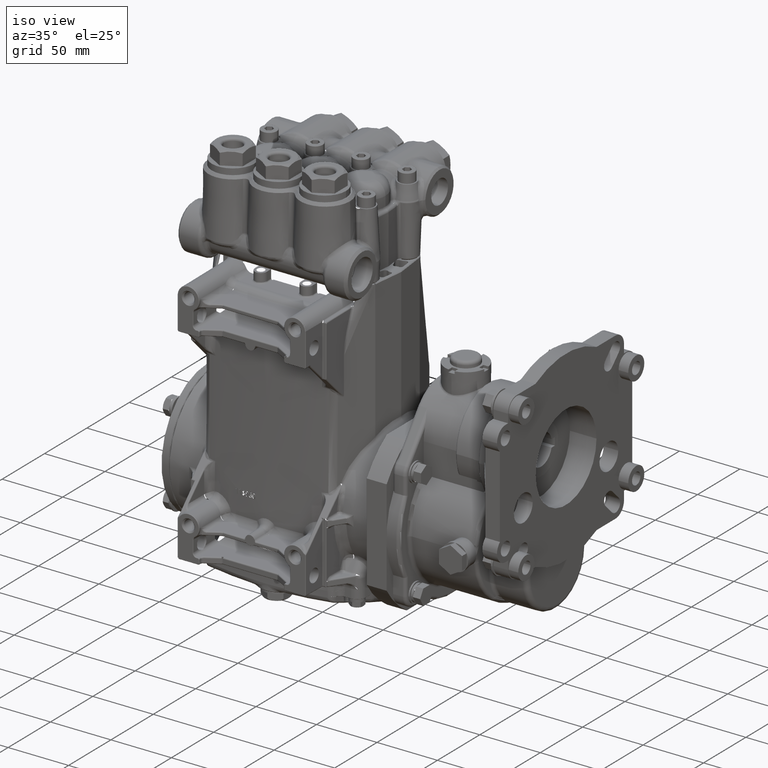
[diagram: clean part render]
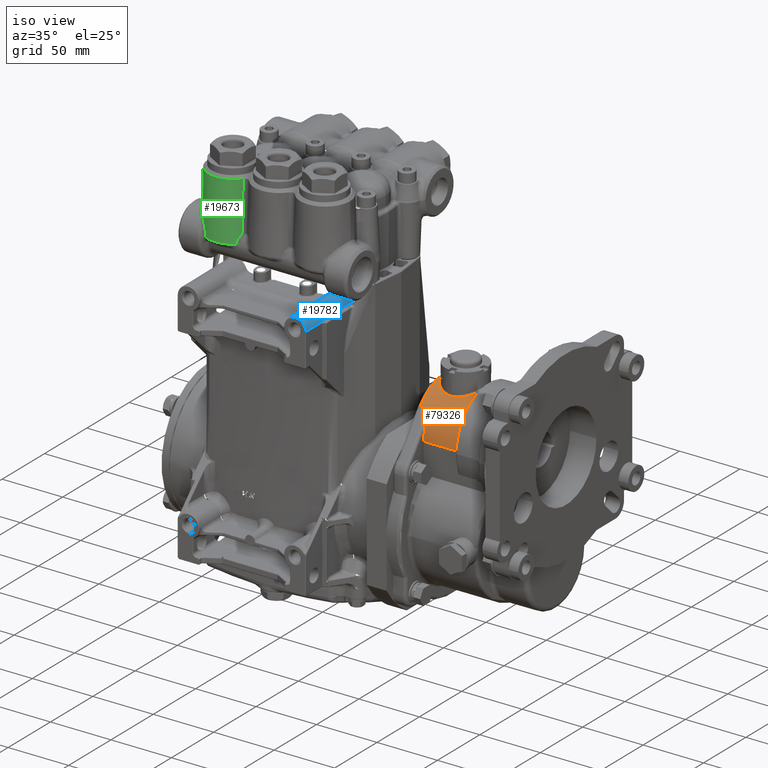
[diagram: same view with three faces highlighted in distinct colors, each labeled with its STEP entity id]
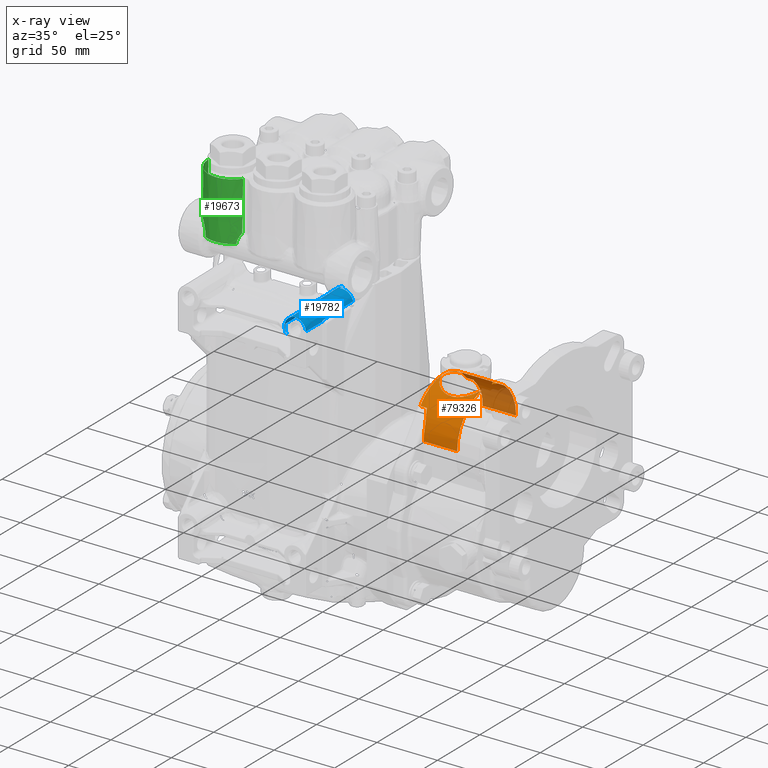
[diagram: x-ray of the same camera — body ghosted, the three highlighted faces saturated]
A machine part, iso view with three faces highlighted in distinct colors.
The next image is the same camera in x-ray (body ghosted, the three faces saturated) — at least one of them is partly hidden behind the body in this view.
Their STEP definitions:

[orange] entity #79326 — the highlighted cylindrical surface (partial cylindrical patch) has radius 34.798 mm, axis along (1, 0, -0).
#1162 = DIRECTION ( 'NONE',  ( -1.000000000000000000, -5.241929486955537873E-17, 1.684286493261702228E-17 ) ) ;
#1629 = CARTESIAN_POINT ( 'NONE',  ( 10.12568773263296329, -0.1997977558323488778, 0.5833511465538874230 ) ) ;
#1750 = CARTESIAN_POINT ( 'NONE',  ( 9.815214099091482680, 1.805292903487342171, -0.2256854626823476262 ) ) ;
#3557 = CARTESIAN_POINT ( 'NONE',  ( 9.715214099091483035, -0.5924274206687478728, 0.2409702225051837676 ) ) ;
#3728 = CARTESIAN_POINT ( 'NONE',  ( 9.517317591900138041, 0.3797155899063233697, 0.7649675640734562299 ) ) ;
#3802 = VERTEX_POINT ( 'NONE', #14081 ) ;
#5866 = CARTESIAN_POINT ( 'NONE',  ( 9.699822193214510335, 0.9581655266043314079, 0.6853066949075335978 ) ) ;
#6376 = DIRECTION ( 'NONE',  ( -1.000000000000000000, -5.241929486955537873E-17, 1.684286493261702228E-17 ) ) ;
#6572 = CARTESIAN_POINT ( 'NONE',  ( 9.580465297804135361, 0.7906131917402526854, 0.7351949854828665476 ) ) ;
#7693 = CARTESIAN_POINT ( 'NONE',  ( 10.73653551970091158, 0.9820915034158766987, 0.6762639759046317200 ) ) ;
#8336 = ORIENTED_EDGE ( 'NONE', *, *, #92593, .T. ) ;
#9013 = CARTESIAN_POINT ( 'NONE',  ( 10.60980304293593335, -0.1032917650848276386, 0.6344531000812795307 ) ) ;
#9124 = CARTESIAN_POINT ( 'NONE',  ( 9.815214099091482680, 1.568159035214265584, 0.2409702225051871816 ) ) ;
#9384 = ORIENTED_EDGE ( 'NONE', *, *, #65945, .T. ) ;
#10482 = AXIS2_PLACEMENT_3D ( 'NONE', #113259, #83494, #104053 ) ;
#11034 = VECTOR ( 'NONE', #111834, 39.37007874015748143 ) ;
#11083 = AXIS2_PLACEMENT_3D ( 'NONE', #37412, #26800, #133800 ) ;
#11101 = CARTESIAN_POINT ( 'NONE',  ( 10.71648082100846189, -0.02546606596043344065, 0.6688701504354975791 ) ) ;
#11611 = CARTESIAN_POINT ( 'NONE',  ( 9.642289238234059923, 0.08436820576953175943, 0.7081832330037501899 ) ) ;
#11968 = CARTESIAN_POINT ( 'NONE',  ( 9.500214099091483178, 1.568159035214265362, 0.2409702225051871816 ) ) ;
#12296 = CARTESIAN_POINT ( 'NONE',  ( 10.05634877622503431, -0.1866084668120253365, 0.5909169642455150973 ) ) ;
#12408 = CARTESIAN_POINT ( 'NONE',  ( 9.771461435974451604, 1.687863099329480310, 0.06086978425139212556 ) ) ;
#12978 = CARTESIAN_POINT ( 'NONE',  ( 10.17244876971810896, -0.2049148805976234444, 0.5803666275622345605 ) ) ;
#14081 = CARTESIAN_POINT ( 'NONE',  ( 10.16788845092270499, 1.179906225319097501, 0.5807965098389277214 ) ) ;
#15000 = ORIENTED_EDGE ( 'NONE', *, *, #125399, .T. ) ;
#15703 = EDGE_CURVE ( 'NONE', #33579, #27379, #41706, .T. ) ;
#17194 = CARTESIAN_POINT ( 'NONE',  ( 9.628230703756708309, 0.8696175434460957643, 0.7143142056688688291 ) ) ;
#17363 = EDGE_CURVE ( 'NONE', #117284, #71400, #136934, .T. ) ;
#17618 = CARTESIAN_POINT ( 'NONE',  ( 10.32580275398457914, 1.176625282729999888, 0.5827159114312081556 ) ) ;
#17910 = CARTESIAN_POINT ( 'NONE',  ( 9.821439673444434248, 1.061451042129850864, 0.6429461305608630273 ) ) ;
#18309 = VERTEX_POINT ( 'NONE', #122451 ) ;
#19455 = VERTEX_POINT ( 'NONE', #67821 ) ;
#19698 = CARTESIAN_POINT ( 'NONE',  ( 10.38370238331493667, 1.166805284480048721, 0.5883788976760764289 ) ) ;
#20338 = CARTESIAN_POINT ( 'NONE',  ( 10.42560460112481024, -0.1838787827247781725, 0.5927389032033522076 ) ) ;
#21284 = CARTESIAN_POINT ( 'NONE',  ( 10.90521409909148254, 0.7295930417575935412, 0.7469402609479987021 ) ) ;
#21723 = CARTESIAN_POINT ( 'NONE',  ( 10.82699759239447168, 0.09787620977176737791, 0.7120408919120952973 ) ) ;
#22232 = CARTESIAN_POINT ( 'NONE',  ( 9.843503703976669073, -0.09850546210836783056, 0.6366828931898548261 ) ) ;
#22749 = CARTESIAN_POINT ( 'NONE',  ( 16.01247551469438690, 1.857865807272759850, -0.6015655581378177574 ) ) ;
#23053 = CARTESIAN_POINT ( 'NONE',  ( 9.798785763004916660, 1.745980975947332148, -0.05749223075876980921 ) ) ;
#23942 = LINE ( 'NONE', #123158, #11034 ) ;
#24102 = CARTESIAN_POINT ( 'NONE',  ( 9.500214099091483178, -0.5924274206687480948, 0.2409702225051837676 ) ) ;
#24312 = CARTESIAN_POINT ( 'NONE',  ( 10.26725764456365475, -0.2062417239190386387, 0.5795863252395122567 ) ) ;
#26427 = CARTESIAN_POINT ( 'NONE',  ( 9.860090392756333699, 1.085356248271155399, 0.6314887414283394396 ) ) ;
#26671 = DIRECTION ( 'NONE',  ( -1.000000000000000000, -5.241929486955537873E-17, 1.684286493261702228E-17 ) ) ;
#26800 = DIRECTION ( 'NONE',  ( 1.000000000000000000, 5.241929486955537873E-17, -1.684286493261702228E-17 ) ) ;
#26896 = CARTESIAN_POINT ( 'NONE',  ( 9.815214099091482680, -0.8821341927272394745, -0.6015655581378219763 ) ) ;
#27379 = VERTEX_POINT ( 'NONE', #11968 ) ;
#27843 = CARTESIAN_POINT ( 'NONE',  ( 10.12119204410725359, 1.175991662621491907, 0.5830877162968234328 ) ) ;
#28077 = CARTESIAN_POINT ( 'NONE',  ( 9.815214099091482680, 0.4878658072727601325, -0.6015655581378198669 ) ) ;
#28352 = DIRECTION ( 'NONE',  ( 0.000000000000000000, 1.000000000000000000, 1.645090945089792983E-15 ) ) ;
#28953 = CARTESIAN_POINT ( 'NONE',  ( 10.36457541866918852, 1.170574133764033409, 0.5862145373075416943 ) ) ;
#32357 = CARTESIAN_POINT ( 'NONE',  ( 10.89917031643864753, 0.2304294666966074101, 0.7441243155379377860 ) ) ;
#33046 = CIRCLE ( 'NONE', #10482, 1.370000000000000329 ) ;
#33555 = CARTESIAN_POINT ( 'NONE',  ( 9.924473540553524487, -0.1426421260926224732, 0.6149628373922613189 ) ) ;
#33579 = VERTEX_POINT ( 'NONE', #113962 ) ;
#33783 = CARTESIAN_POINT ( 'NONE',  ( 16.01247551469438690, -0.8821341927272392525, -0.6015655581378221983 ) ) ;
#35624 = CARTESIAN_POINT ( 'NONE',  ( 9.583326788327617862, 0.1820224955130049782, 0.7340194916806458414 ) ) ;
#36353 = ORIENTED_EDGE ( 'NONE', *, *, #80385, .T. ) ;
#37060 = CARTESIAN_POINT ( 'NONE',  ( 9.655257614640081698, 0.9066053460644390993, 0.7030152709102829300 ) ) ;
#37412 = CARTESIAN_POINT ( 'NONE',  ( 9.500214099091483178, 0.4878658072727601325, -0.6015655581378198669 ) ) ;
#38169 = B_SPLINE_CURVE_WITH_KNOTS ( 'NONE', 3,
 ( #1750, #88306, #119447, #23053, #54962, #12408, #121503, #131464, #88972, #89654, #57741, #100290 ),
 .UNSPECIFIED., .F., .F.,
 ( 4, 2, 2, 2, 2, 4 ),
 ( 0.000000000000000000, 0.003411321517926370773, 0.006822643035852741546, 0.01023396455377911102, 0.01193962531274228057, 0.01364528607170545013 ),
 .UNSPECIFIED. ) ;
#38473 = CARTESIAN_POINT ( 'NONE',  ( 9.538637478614626630, 0.6825095943095162987, 0.7547212445804509784 ) ) ;
#39170 = CARTESIAN_POINT ( 'NONE',  ( 10.00822361129527494, 1.149055358843187991, 0.5983425200262681987 ) ) ;
#39625 = DIRECTION ( 'NONE',  ( -1.000000000000000000, -5.241929486955537873E-17, 1.684286493261702228E-17 ) ) ;
#39750 = CYLINDRICAL_SURFACE ( 'NONE', #94976, 1.370000000000000107 ) ;
#39986 = CARTESIAN_POINT ( 'NONE',  ( 9.715214099091483035, -0.5924274206687478728, 0.2409702225051837676 ) ) ;
#41384 = CARTESIAN_POINT ( 'NONE',  ( 9.760859662006302173, -0.6905540572559261125, 0.09850407919441266091 ) ) ;
#41509 = ORIENTED_EDGE ( 'NONE', *, *, #61542, .T. ) ;
#41667 = CARTESIAN_POINT ( 'NONE',  ( 10.47710979615548155, 1.141476914426152067, 0.6025817491842485607 ) ) ;
#41706 = LINE ( 'NONE', #9124, #103723 ) ;
#42285 = CARTESIAN_POINT ( 'NONE',  ( 10.52011290949690547, -0.1488200703112429468, 0.6115737901761669759 ) ) ;
#48291 = FACE_OUTER_BOUND ( 'NONE', #98318, .T. ) ;
#48979 = DIRECTION ( 'NONE',  ( 0.000000000000000000, -1.000000000000000000, -1.645090945089793377E-15 ) ) ;
#49027 = EDGE_CURVE ( 'NONE', #18309, #3802, #54820, .T. ) ;
#50917 = CARTESIAN_POINT ( 'NONE',  ( 10.76333535191984936, 0.9551230858057724316, 0.6863699963280166516 ) ) ;
#51599 = CARTESIAN_POINT ( 'NONE',  ( 10.81281521831192194, 0.8977293380775759335, 0.7060450608768661374 ) ) ;
#52035 = CARTESIAN_POINT ( 'NONE',  ( 9.726903810588851229, -0.6185657650644059702, 0.2064111747018833043 ) ) ;
#52041 = DIRECTION ( 'NONE',  ( 0.000000000000000000, 1.000000000000000000, 1.645090945089793377E-15 ) ) ;
#54187 = CIRCLE ( 'NONE', #128854, 1.370000000000000107 ) ;
#54820 = B_SPLINE_CURVE_WITH_KNOTS ( 'NONE', 3,
 ( #87486, #24312, #121395, #120709, #12978, #1629, #88861, #12296, #130651, #119329, #33555, #100172, #22232, #65511, #132024, #120034, #55535, #98779, #67570, #11611, #110786, #35624, #78933, #68288, #57630, #100869, #3728, #54854, #125635, #102990, #123507, #134159, #61147, #114301, #38473, #136269, #6572, #91688, #17194, #37060, #124931, #5866, #60433, #59054, #114984, #17910, #26427, #81753, #134847, #103684, #39170, #133452, #27843, #58331 ),
 .UNSPECIFIED., .F., .F.,
 ( 4, 2, 2, 2, 2, 2, 2, 2, 2, 2, 2, 2, 2, 2, 2, 2, 2, 2, 2, 2, 2, 2, 2, 2, 2, 2, 4 ),
 ( 0.1134432097632737252, 0.1152390443564296346, 0.1170348789495855441, 0.1188307135427414396, 0.1206265481358973490, 0.1242182173222091679, 0.1260140519153650773, 0.1278098865085209868, 0.1296057211016768962, 0.1314015556948327779, 0.1349932248811445967, 0.1367890594743005062, 0.1385848940674564156, 0.1421765632537682067, 0.1439723978469241161, 0.1457682324400800256, 0.1475640670332359350, 0.1493599016263918444, 0.1529515708127036355, 0.1547474054058595450, 0.1565432399990154266, 0.1583390745921713361, 0.1601349091853272455, 0.1637265783716390366, 0.1655224129647949460, 0.1673182475579508277, 0.1709099167442626466 ),
 .UNSPECIFIED. ) ;
#54854 = CARTESIAN_POINT ( 'NONE',  ( 9.510861244769163392, 0.4501491078699640935, 0.7681167997431544991 ) ) ;
#54962 = CARTESIAN_POINT ( 'NONE',  ( 9.790403981021450264, 1.727684009877598736, -0.01704446503725245282 ) ) ;
#55535 = CARTESIAN_POINT ( 'NONE',  ( 9.734698347444426858, -0.01660308173462397840, 0.6722876201916631045 ) ) ;
#57630 = CARTESIAN_POINT ( 'NONE',  ( 9.546922259407791600, 0.2676780687028247896, 0.7508095955649137787 ) ) ;
#57741 = CARTESIAN_POINT ( 'NONE',  ( 9.721052291247158195, 1.581448490910671634, 0.2239305794162027019 ) ) ;
#58331 = CARTESIAN_POINT ( 'NONE',  ( 10.16788845092270499, 1.179906225319097501, 0.5807965098389277214 ) ) ;
#59054 = CARTESIAN_POINT ( 'NONE',  ( 9.749172573087657057, 1.005207119459983423, 0.6671081880956903909 ) ) ;
#59277 = EDGE_CURVE ( 'NONE', #73098, #19455, #33046, .T. ) ;
#60159 = ORIENTED_EDGE ( 'NONE', *, *, #105687, .F. ) ;
#60238 = CARTESIAN_POINT ( 'NONE',  ( 10.90521409909148254, 0.4878658072727602435, -0.6015655581378198669 ) ) ;
#60433 = CARTESIAN_POINT ( 'NONE',  ( 9.715735696279574896, 0.9743407254487943536, 0.6792612301764270333 ) ) ;
#60579 = VECTOR ( 'NONE', #119126, 39.37007874015748143 ) ;
#61147 = CARTESIAN_POINT ( 'NONE',  ( 9.521760615510830306, 0.6139654302923089890, 0.7628128524892454632 ) ) ;
#61542 = EDGE_CURVE ( 'NONE', #19455, #18309, #84225, .T. ) ;
#61574 = CARTESIAN_POINT ( 'NONE',  ( 10.64816808451277197, 1.054709711366322855, 0.6458602698324631408 ) ) ;
#61962 = CARTESIAN_POINT ( 'NONE',  ( 9.811122050631432501, -0.8028239119240810906, -0.1400575500809232710 ) ) ;
#61968 = DIRECTION ( 'NONE',  ( -1.000000000000000000, -5.241929486955537873E-17, 1.684286493261702228E-17 ) ) ;
#62057 = CARTESIAN_POINT ( 'NONE',  ( 10.20687890485330307, 1.183174797505446296, 0.5788834037578719505 ) ) ;
#62872 = CARTESIAN_POINT ( 'NONE',  ( 10.69107792708933680, -0.04680561105758584278, 0.6599725316231400685 ) ) ;
#63598 = CARTESIAN_POINT ( 'NONE',  ( 10.35984927979118631, -0.1986774128631254022, 0.5840148616283813432 ) ) ;
#64975 = CARTESIAN_POINT ( 'NONE',  ( 10.76434144935721449, 0.02090588867678782117, 0.6866366527437366418 ) ) ;
#65511 = CARTESIAN_POINT ( 'NONE',  ( 9.805419628356478512, -0.07343978937589043521, 0.6482450354890395561 ) ) ;
#65945 = EDGE_CURVE ( 'NONE', #27379, #92609, #115188, .T. ) ;
#66906 = EDGE_CURVE ( 'NONE', #80007, #71400, #54187, .T. ) ;
#67570 = CARTESIAN_POINT ( 'NONE',  ( 9.686349010407468541, 0.03210910620460764864, 0.6905350114814304829 ) ) ;
#67821 = CARTESIAN_POINT ( 'NONE',  ( 10.90521409909120543, 0.2461385727871965023, 0.7469402609478678068 ) ) ;
#68288 = CARTESIAN_POINT ( 'NONE',  ( 9.554896321624232414, 0.2458471723936561659, 0.7470661045638612441 ) ) ;
#68854 = ORIENTED_EDGE ( 'NONE', *, *, #49027, .T. ) ;
#70975 = CARTESIAN_POINT ( 'NONE',  ( 9.400214099091483533, 0.4878658072727601325, -0.6015655581378198669 ) ) ;
#71400 = VERTEX_POINT ( 'NONE', #125218 ) ;
#71914 = CARTESIAN_POINT ( 'NONE',  ( 9.721070828676152686, -0.6056575501231035163, 0.2237973268433821883 ) ) ;
#72899 = CARTESIAN_POINT ( 'NONE',  ( 10.90521409909148254, -0.8821341927272392525, -0.6015655581378221983 ) ) ;
#72919 = CARTESIAN_POINT ( 'NONE',  ( 10.30608561250095789, 1.178910706580686307, 0.5813798886031480428 ) ) ;
#73098 = VERTEX_POINT ( 'NONE', #72899 ) ;
#73615 = CARTESIAN_POINT ( 'NONE',  ( 10.77614315409704382, 0.9411480807410893545, 0.6913646765501634261 ) ) ;
#74011 = CARTESIAN_POINT ( 'NONE',  ( 9.815214099091482680, 0.4878658072727601325, -0.6015655581378198669 ) ) ;
#74228 = CARTESIAN_POINT ( 'NONE',  ( 10.84548487589300869, 0.1255365591172055151, 0.7199980550912413735 ) ) ;
#74304 = CARTESIAN_POINT ( 'NONE',  ( 10.67891815612874851, 1.032413684739903692, 0.6558481453703125519 ) ) ;
#74738 = CARTESIAN_POINT ( 'NONE',  ( 9.718125170968596294, -0.5990538830576178642, 0.2324738207993214956 ) ) ;
#75959 = LINE ( 'NONE', #22749, #60579 ) ;
#76678 = CARTESIAN_POINT ( 'NONE',  ( 10.90521409909148254, 1.857865807272759850, -0.6015655581378177574 ) ) ;
#78933 = CARTESIAN_POINT ( 'NONE',  ( 9.573177613222268789, 0.2028305769730525399, 0.7386341653206794922 ) ) ;
#79326 = ADVANCED_FACE ( 'NONE', ( #48291 ), #39750, .T. ) ;
#80007 = VERTEX_POINT ( 'NONE', #26896 ) ;
#80385 = EDGE_CURVE ( 'NONE', #137006, #33579, #38169, .T. ) ;
#81172 = VERTEX_POINT ( 'NONE', #111100 ) ;
#81753 = CARTESIAN_POINT ( 'NONE',  ( 9.921513666026694267, 1.115819527458703053, 0.6160975966366835088 ) ) ;
#82178 = CARTESIAN_POINT ( 'NONE',  ( 10.53084091319903592, 1.119344004521328984, 0.6142489181212084093 ) ) ;
#82348 = CIRCLE ( 'NONE', #84667, 1.370000000000000107 ) ;
#83275 = CARTESIAN_POINT ( 'NONE',  ( 9.771460900137872940, -0.7121303809729124801, 0.06087180477653266614 ) ) ;
#83494 = DIRECTION ( 'NONE',  ( -1.000000000000000000, -5.241929486955537873E-17, 1.684286493261702228E-17 ) ) ;
#83498 = CARTESIAN_POINT ( 'NONE',  ( 10.90521409909120543, 0.2461385727871965023, 0.7469402609478678068 ) ) ;
#83565 = CARTESIAN_POINT ( 'NONE',  ( 10.89062268033413972, 0.7652423624021794657, 0.7401791458129174384 ) ) ;
#84225 = B_SPLINE_CURVE_WITH_KNOTS ( 'NONE', 3,
 ( #83498, #32357, #108191, #118826, #94110, #74228, #21723, #128059, #64975, #11101, #62872, #137302, #9013, #95522, #42285, #20338, #63598, #127366 ),
 .UNSPECIFIED., .F., .F.,
 ( 4, 2, 2, 2, 2, 2, 2, 2, 4 ),
 ( 0.09257020926072984102, 0.09387477179213882250, 0.09517933432354780399, 0.09778845938636576696, 0.1003975844491837438, 0.1030067095120017068, 0.1056158345748196697, 0.1082249596376376466, 0.1134432097632737252 ),
 .UNSPECIFIED. ) ;
#84468 = EDGE_CURVE ( 'NONE', #73098, #80007, #89766, .T. ) ;
#84667 = AXIS2_PLACEMENT_3D ( 'NONE', #28077, #26671, #123754 ) ;
#84969 = CARTESIAN_POINT ( 'NONE',  ( 10.59944589966092465, 1.084506025192334411, 0.6317394537447751368 ) ) ;
#87486 = CARTESIAN_POINT ( 'NONE',  ( 10.29096412491639434, -0.2043050134269046580, 0.5807201750806574303 ) ) ;
#88306 = CARTESIAN_POINT ( 'NONE',  ( 9.815214099091484456, 1.792909298317831412, -0.1822820018543201415 ) ) ;
#88861 = CARTESIAN_POINT ( 'NONE',  ( 10.10246830804580931, -0.1961395780006554013, 0.5854756144880017832 ) ) ;
#88956 = ORIENTED_EDGE ( 'NONE', *, *, #66906, .F. ) ;
#88972 = CARTESIAN_POINT ( 'NONE',  ( 9.738469844088182725, 1.619358939541210907, 0.1711510441302532548 ) ) ;
#89654 = CARTESIAN_POINT ( 'NONE',  ( 9.726923381431952009, 1.594406751083582874, 0.2064782497473955092 ) ) ;
#89766 = LINE ( 'NONE', #33783, #97583 ) ;
#91563 = DIRECTION ( 'NONE',  ( 1.000000000000000000, 5.241929486955537873E-17, -1.684286493261702228E-17 ) ) ;
#91688 = CARTESIAN_POINT ( 'NONE',  ( 9.615481648558903416, 0.8502264564356529775, 0.7198034071341787854 ) ) ;
#92593 = EDGE_CURVE ( 'NONE', #125123, #81172, #75959, .T. ) ;
#92609 = VERTEX_POINT ( 'NONE', #24102 ) ;
#94110 = CARTESIAN_POINT ( 'NONE',  ( 10.87037650549777901, 0.1694977626511743607, 0.7310146477536807463 ) ) ;
#94179 = CARTESIAN_POINT ( 'NONE',  ( 10.44033938246705873, 1.153332083654631912, 0.5959991046380114232 ) ) ;
#94976 = AXIS2_PLACEMENT_3D ( 'NONE', #70975, #91563, #48979 ) ;
#95309 = CARTESIAN_POINT ( 'NONE',  ( 9.729809055113060268, -0.6249111338126640547, 0.1976493035389991215 ) ) ;
#95522 = CARTESIAN_POINT ( 'NONE',  ( 10.55108583648098275, -0.1348307062167228565, 0.6188681561250654051 ) ) ;
#96002 = CARTESIAN_POINT ( 'NONE',  ( 9.798785542922805902, -0.7702488397308717705, -0.05749099731366995314 ) ) ;
#97583 = VECTOR ( 'NONE', #1162, 39.37007874015748143 ) ;
#98318 = EDGE_LOOP ( 'NONE', ( #60159, #36353, #128224, #9384, #107946, #109943, #88956, #111514, #119472, #41509, #68854, #126872, #15000, #8336 ) ) ;
#98779 = CARTESIAN_POINT ( 'NONE',  ( 9.702026866042343656, 0.01525937037655867093, 0.6844491912802210809 ) ) ;
#100172 = CARTESIAN_POINT ( 'NONE',  ( 9.863299897734103538, -0.1102371603475370276, 0.6310407204100848544 ) ) ;
#100290 = CARTESIAN_POINT ( 'NONE',  ( 9.715214099091483035, 1.568159035214265584, 0.2409702225051871816 ) ) ;
#100869 = CARTESIAN_POINT ( 'NONE',  ( 9.526434564013710471, 0.3341349426054590066, 0.7605179956593692836 ) ) ;
#102990 = CARTESIAN_POINT ( 'NONE',  ( 9.510625998375340728, 0.5211297255367407510, 0.7682329588017298150 ) ) ;
#103684 = CARTESIAN_POINT ( 'NONE',  ( 9.985911680189163420, 1.141690994012371174, 0.6023868617045053941 ) ) ;
#103723 = VECTOR ( 'NONE', #39625, 39.37007874015748143 ) ;
#103870 = AXIS2_PLACEMENT_3D ( 'NONE', #60238, #6376, #28352 ) ;
#104053 = DIRECTION ( 'NONE',  ( 0.000000000000000000, 1.000000000000000000, 1.645090945089792983E-15 ) ) ;
#105687 = EDGE_CURVE ( 'NONE', #137006, #81172, #82348, .T. ) ;
#106612 = CARTESIAN_POINT ( 'NONE',  ( 9.738468979365400457, -0.6436254846850375522, 0.1711537435298652876 ) ) ;
#107946 = ORIENTED_EDGE ( 'NONE', *, *, #139934, .F. ) ;
#108191 = CARTESIAN_POINT ( 'NONE',  ( 10.89255207511192403, 0.2149670469472016732, 0.7410693984329528305 ) ) ;
#109673 = VERTEX_POINT ( 'NONE', #21284 ) ;
#109943 = ORIENTED_EDGE ( 'NONE', *, *, #17363, .T. ) ;
#110786 = CARTESIAN_POINT ( 'NONE',  ( 9.616507329962390216, 0.1217711816456752416, 0.7192618157737133977 ) ) ;
#111100 = CARTESIAN_POINT ( 'NONE',  ( 9.815214099091482680, 1.857865807272759628, -0.6015655581378177574 ) ) ;
#111514 = ORIENTED_EDGE ( 'NONE', *, *, #84468, .F. ) ;
#111834 = DIRECTION ( 'NONE',  ( -1.000000000000000000, -5.241929486955537873E-17, 1.684286493261702228E-17 ) ) ;
#113259 = CARTESIAN_POINT ( 'NONE',  ( 10.90521409909148254, 0.4878658072727602435, -0.6015655581378198669 ) ) ;
#113962 = CARTESIAN_POINT ( 'NONE',  ( 9.715214099091483035, 1.568159035214265584, 0.2409702225051871816 ) ) ;
#114301 = CARTESIAN_POINT ( 'NONE',  ( 9.532172935824236859, 0.6597169516986920446, 0.7578081014828186301 ) ) ;
#114703 = CARTESIAN_POINT ( 'NONE',  ( 10.54850791457992187, 1.111229733937440844, 0.6184394491145618344 ) ) ;
#114984 = CARTESIAN_POINT ( 'NONE',  ( 9.766786241218991194, 1.019964037009521540, 0.6609711007950801465 ) ) ;
#115127 = CARTESIAN_POINT ( 'NONE',  ( 9.744168179253501094, -0.6556730014518743488, 0.1532103764932576107 ) ) ;
#115188 = CIRCLE ( 'NONE', #11083, 1.370000000000000107 ) ;
#115423 = CARTESIAN_POINT ( 'NONE',  ( 10.89829855224682120, 0.7475680526577125340, 0.7437181393870654356 ) ) ;
#115931 = CARTESIAN_POINT ( 'NONE',  ( 10.16788845092270499, 1.179906225319097501, 0.5807965098389277214 ) ) ;
#116113 = CARTESIAN_POINT ( 'NONE',  ( 10.72248812115001293, 0.9951310767341062791, 0.6711332866618098247 ) ) ;
#116794 = CARTESIAN_POINT ( 'NONE',  ( 10.24681071470726579, 1.183381232643212266, 0.5787607629999047543 ) ) ;
#117284 = VERTEX_POINT ( 'NONE', #3557 ) ;
#117508 = CARTESIAN_POINT ( 'NONE',  ( 10.87374301157313639, 0.7999957045357378727, 0.7325227189825205265 ) ) ;
#117924 = CARTESIAN_POINT ( 'NONE',  ( 9.815214099091482680, -0.8295612889418235714, -0.2256854626823532328 ) ) ;
#118826 = CARTESIAN_POINT ( 'NONE',  ( 10.87817053672281986, 0.1845275463391237436, 0.7345213624802900965 ) ) ;
#119126 = DIRECTION ( 'NONE',  ( -1.000000000000000000, -5.241929486955537873E-17, 1.684286493261702228E-17 ) ) ;
#119329 = CARTESIAN_POINT ( 'NONE',  ( 9.967005735387530763, -0.1602631756709451127, 0.6055269503640735573 ) ) ;
#119447 = CARTESIAN_POINT ( 'NONE',  ( 9.811122110237931793, 1.778555743329634842, -0.1400581885586797415 ) ) ;
#119472 = ORIENTED_EDGE ( 'NONE', *, *, #59277, .T. ) ;
#120034 = CARTESIAN_POINT ( 'NONE',  ( 9.751708118988970497, -0.03165436244674407762, 0.6662028836141041799 ) ) ;
#120709 = CARTESIAN_POINT ( 'NONE',  ( 10.19599037865836699, -0.2063738685778523652, 0.5795065915320311012 ) ) ;
#121395 = CARTESIAN_POINT ( 'NONE',  ( 10.24340531989011893, -0.2070420927271998945, 0.5791135518529394455 ) ) ;
#121503 = CARTESIAN_POINT ( 'NONE',  ( 9.760860310125572425, 1.666287001350015506, 0.09850182120582899603 ) ) ;
#122451 = CARTESIAN_POINT ( 'NONE',  ( 10.29096412491639434, -0.2043050134269046580, 0.5807201750806574303 ) ) ;
#123158 = CARTESIAN_POINT ( 'NONE',  ( 9.815214099091482680, -0.5924274206687478728, 0.2409702225051837676 ) ) ;
#123507 = CARTESIAN_POINT ( 'NONE',  ( 9.512202969847855627, 0.5445052057967447734, 0.7674605442361488450 ) ) ;
#123754 = DIRECTION ( 'NONE',  ( 0.000000000000000000, 1.000000000000000000, 1.645090945089793377E-15 ) ) ;
#124931 = CARTESIAN_POINT ( 'NONE',  ( 9.669583195167952283, 0.9242977333640669535, 0.6971835306201320526 ) ) ;
#125123 = VERTEX_POINT ( 'NONE', #76678 ) ;
#125218 = CARTESIAN_POINT ( 'NONE',  ( 9.815214099091482680, -0.8295612889418235714, -0.2256854626823532328 ) ) ;
#125350 = CARTESIAN_POINT ( 'NONE',  ( 10.83494358175325800, 0.8668049020097193802, 0.7154293404791602917 ) ) ;
#125399 = EDGE_CURVE ( 'NONE', #109673, #125123, #128724, .T. ) ;
#125635 = CARTESIAN_POINT ( 'NONE',  ( 9.509943104887103260, 0.4740367378433502643, 0.7685669982620269014 ) ) ;
#126473 = CARTESIAN_POINT ( 'NONE',  ( 9.815214099091482680, -0.8171775901858903124, -0.1822816738420418303 ) ) ;
#126872 = ORIENTED_EDGE ( 'NONE', *, *, #127868, .T. ) ;
#127366 = CARTESIAN_POINT ( 'NONE',  ( 10.29096412491639434, -0.2043050134269046580, 0.5807201750806574303 ) ) ;
#127868 = EDGE_CURVE ( 'NONE', #3802, #109673, #138583, .T. ) ;
#128059 = CARTESIAN_POINT ( 'NONE',  ( 10.78642622336721502, 0.04556022719189158077, 0.6953614118959801083 ) ) ;
#128224 = ORIENTED_EDGE ( 'NONE', *, *, #15703, .T. ) ;
#128724 = CIRCLE ( 'NONE', #103870, 1.370000000000000329 ) ;
#128854 = AXIS2_PLACEMENT_3D ( 'NONE', #74011, #61968, #52041 ) ;
#130651 = CARTESIAN_POINT ( 'NONE',  ( 10.03359833433388637, -0.1807579203767370468, 0.5942200357197707783 ) ) ;
#131464 = CARTESIAN_POINT ( 'NONE',  ( 9.744168990464517677, 1.631406323655713031, 0.1532077846337014659 ) ) ;
#132024 = CARTESIAN_POINT ( 'NONE',  ( 9.787068756056912733, -0.06007279158890790893, 0.6541817574177406502 ) ) ;
#133452 = CARTESIAN_POINT ( 'NONE',  ( 10.07545576521394715, 1.167768813779429982, 0.5879032217553484818 ) ) ;
#133800 = DIRECTION ( 'NONE',  ( 0.000000000000000000, 1.000000000000000000, 1.645090945089793377E-15 ) ) ;
#134159 = CARTESIAN_POINT ( 'NONE',  ( 9.517770239949292943, 0.5909230653603136929, 0.7647505443808816361 ) ) ;
#134847 = CARTESIAN_POINT ( 'NONE',  ( 9.942567151058399944, 1.125067056566091406, 0.6112672299901626971 ) ) ;
#136001 = CARTESIAN_POINT ( 'NONE',  ( 10.86448866056622009, 0.8171501762815127634, 0.7283834651154444950 ) ) ;
#136269 = CARTESIAN_POINT ( 'NONE',  ( 9.561184754014842468, 0.7487532422913814045, 0.7441082977754327477 ) ) ;
#136617 = CARTESIAN_POINT ( 'NONE',  ( 9.815214099091482680, 1.805292903487342171, -0.2256854626823476262 ) ) ;
#136686 = CARTESIAN_POINT ( 'NONE',  ( 10.90521409909148254, 0.7295930417575935412, 0.7469402609479987021 ) ) ;
#136934 = B_SPLINE_CURVE_WITH_KNOTS ( 'NONE', 3,
 ( #39986, #74738, #71914, #52035, #95309, #106612, #115127, #41384, #83275, #138497, #96002, #61962, #126473, #117924 ),
 .UNSPECIFIED., .F., .F.,
 ( 4, 2, 2, 2, 2, 2, 4 ),
 ( -3.730844874066597996E-05, 0.0008131776152239273553, 0.001663663679188520650, 0.003364635807117713311, 0.006766580062976119449, 0.01016852431883452472, 0.01357046857469293259 ),
 .UNSPECIFIED. ) ;
#137006 = VERTEX_POINT ( 'NONE', #136617 ) ;
#137302 = CARTESIAN_POINT ( 'NONE',  ( 10.63777102397690122, -0.08568775089411084789, 0.6427769161879733906 ) ) ;
#138497 = CARTESIAN_POINT ( 'NONE',  ( 9.790403657931284087, -0.7519516935132386504, -0.01704295264353644299 ) ) ;
#138583 = B_SPLINE_CURVE_WITH_KNOTS ( 'NONE', 3,
 ( #115931, #62057, #116794, #72919, #17618, #28953, #19698, #94179, #41667, #82178, #114703, #138777, #84969, #61574, #74304, #116113, #7693, #50917, #73615, #51599, #125350, #136001, #117508, #83565, #115423, #136686 ),
 .UNSPECIFIED., .F., .F.,
 ( 4, 2, 2, 2, 2, 2, 2, 2, 2, 2, 2, 2, 4 ),
 ( 0.05593613163178843412, 0.05893509496736794306, 0.06043457663515770101, 0.06193405830294745895, 0.06493302163852680831, 0.06643250330631647604, 0.06793198497410615766, 0.07093094830968550701, 0.07243042997747517475, 0.07392991164526485637, 0.07692887498084420572, 0.07842835664863388734, 0.07992783831642355508 ),
 .UNSPECIFIED. ) ;
#138777 = CARTESIAN_POINT ( 'NONE',  ( 10.58276976954621951, 1.093826342614885094, 0.6271763319251739688 ) ) ;
#139934 = EDGE_CURVE ( 'NONE', #117284, #92609, #23942, .T. ) ;

[blue] entity #19782 — the highlighted conical surface has half-angle 0.4 deg.
#484 = CIRCLE ( 'NONE', #134048, 0.3544671789615561064 ) ;
#3090 = CARTESIAN_POINT ( 'NONE',  ( 7.494686136273271515, -2.260685660170318023, 2.845497575210133689 ) ) ;
#3362 = EDGE_CURVE ( 'NONE', #70769, #89224, #105596, .T. ) ;
#5101 = DIRECTION ( 'NONE',  ( 0.000000000000000000, -1.000000000000000000, -0.000000000000000000 ) ) ;
#5381 = CARTESIAN_POINT ( 'NONE',  ( 7.494587014364769040, -2.507643099735672010, 2.832528987168033474 ) ) ;
#5865 = CARTESIAN_POINT ( 'NONE',  ( 7.070399153417145754, -0.7465701795094734639, 3.157059231926871767 ) ) ;
#7903 = CARTESIAN_POINT ( 'NONE',  ( 6.910929256226467032, -0.7454486745445481066, 3.085167379321184900 ) ) ;
#8541 = CARTESIAN_POINT ( 'NONE',  ( 7.070403405278838704, -0.7811941254138050628, 3.156814097032722088 ) ) ;
#10757 = B_SPLINE_CURVE_WITH_KNOTS ( 'NONE', 3,
 ( #128286, #8541, #138935, #95055 ),
 .UNSPECIFIED., .F., .F.,
 ( 4, 4 ),
 ( 0.0009898800187485574508, 0.003628290839657336876 ),
 .UNSPECIFIED. ) ;
#10952 = VERTEX_POINT ( 'NONE', #105300 ) ;
#11162 = CARTESIAN_POINT ( 'NONE',  ( 6.803233200822266014, -1.267004576928915549, 2.941499202498470300 ) ) ;
#11851 = CARTESIAN_POINT ( 'NONE',  ( 6.802366774076966216, -0.8504420171249531535, 2.946654384813039762 ) ) ;
#12883 = CARTESIAN_POINT ( 'NONE',  ( 6.792546144438507127, -2.988124143672306499, 2.712209527952768706 ) ) ;
#13179 = CARTESIAN_POINT ( 'NONE',  ( 7.490899069784044961, -3.035893666355169440, 2.832323936131857955 ) ) ;
#13879 = CARTESIAN_POINT ( 'NONE',  ( 7.492962405040612950, -2.740347463165201169, 2.832438835937005184 ) ) ;
#14120 = CARTESIAN_POINT ( 'NONE',  ( 6.783395481392449966, -1.835256453695099710, 2.867604028469354471 ) ) ;
#14273 = CARTESIAN_POINT ( 'NONE',  ( 6.838182632481236034, -3.020295130028115338, 2.603668659776703365 ) ) ;
#15291 = AXIS2_PLACEMENT_3D ( 'NONE', #115730, #27888, #71123 ) ;
#15490 = CARTESIAN_POINT ( 'NONE',  ( 6.803524073498058655, -1.398227876233054667, 2.939881214180597890 ) ) ;
#17006 = CARTESIAN_POINT ( 'NONE',  ( 6.959912911303304917, -0.7459573624389782553, 3.117775761628294173 ) ) ;
#17435 = DIRECTION ( 'NONE',  ( 0.000000000000000000, 0.000000000000000000, -1.000000000000000000 ) ) ;
#18068 = EDGE_CURVE ( 'NONE', #31939, #70769, #42443, .T. ) ;
#18561 = CARTESIAN_POINT ( 'NONE',  ( 6.802366774076966216, -0.8504420171249531535, 2.946654384813039762 ) ) ;
#19782 = ADVANCED_FACE ( 'NONE', ( #83034 ), #31536, .T. ) ;
#19897 = EDGE_LOOP ( 'NONE', ( #64889, #69507, #128464, #32898, #31197, #84513, #93554, #56202, #65557, #124866, #60698, #51810, #78103, #118719, #37889, #24850 ) ) ;
#22842 = B_SPLINE_CURVE_WITH_KNOTS ( 'NONE', 3,
 ( #47521, #46787, #90063, #17006, #68787, #26239, #112707, #90795 ),
 .UNSPECIFIED., .F., .F.,
 ( 4, 2, 2, 4 ),
 ( 3.619050611424002596E-16, 0.001120440451797030234, 0.002240880903593698344, 0.004481761807187034999 ),
 .UNSPECIFIED. ) ;
#23276 = CARTESIAN_POINT ( 'NONE',  ( 6.786846562597336430, -2.853379468591183965, 2.845910334132106811 ) ) ;
#23929 = EDGE_CURVE ( 'NONE', #89224, #43951, #70877, .T. ) ;
#24218 = CARTESIAN_POINT ( 'NONE',  ( 6.797682652382413870, -2.991744661751380097, 2.692825978007343579 ) ) ;
#24832 = EDGE_CURVE ( 'NONE', #87219, #82829, #22842, .T. ) ;
#24850 = ORIENTED_EDGE ( 'NONE', *, *, #3362, .F. ) ;
#25406 = CARTESIAN_POINT ( 'NONE',  ( 6.911151547804423423, -0.7674147149135837065, 3.085146175266292978 ) ) ;
#26239 = CARTESIAN_POINT ( 'NONE',  ( 7.013352794804590395, -0.7463480269269097134, 3.142818547186331912 ) ) ;
#26830 = CARTESIAN_POINT ( 'NONE',  ( 6.911992880548692320, -0.8504420171249533755, 3.085065862462472275 ) ) ;
#26920 = DIRECTION ( 'NONE',  ( 0.000000000000000000, -1.000000000000000000, -0.000000000000000000 ) ) ;
#27888 = DIRECTION ( 'NONE',  ( -0.000000000000000000, 1.000000000000000000, -0.000000000000000000 ) ) ;
#28383 = EDGE_CURVE ( 'NONE', #79209, #31939, #137547, .T. ) ;
#31197 = ORIENTED_EDGE ( 'NONE', *, *, #46667, .F. ) ;
#31394 = VERTEX_POINT ( 'NONE', #92502 ) ;
#31536 = CONICAL_SURFACE ( 'NONE', #33758, 0.3543307086614170820, 0.006981317007977333976 ) ;
#31939 = VERTEX_POINT ( 'NONE', #72453 ) ;
#32898 = ORIENTED_EDGE ( 'NONE', *, *, #24832, .F. ) ;
#33758 = AXIS2_PLACEMENT_3D ( 'NONE', #103574, #93679, #114881 ) ;
#35131 = CARTESIAN_POINT ( 'NONE',  ( 7.491337795717302406, -2.973051826473434467, 2.832348373185987089 ) ) ;
#36984 = DIRECTION ( 'NONE',  ( 3.082765520539826408E-15, 0.000000000000000000, -1.000000000000000000 ) ) ;
#37852 = CARTESIAN_POINT ( 'NONE',  ( 6.785037175381819274, -2.982831464638170615, 2.827328583753005997 ) ) ;
#37889 = ORIENTED_EDGE ( 'NONE', *, *, #23929, .F. ) ;
#38498 = B_SPLINE_CURVE_WITH_KNOTS ( 'NONE', 3,
 ( #123611, #59150, #37852, #125034 ),
 .UNSPECIFIED., .F., .F.,
 ( 4, 4 ),
 ( 0.006782450374274666578, 0.008081085727073625269 ),
 .UNSPECIFIED. ) ;
#40340 = CARTESIAN_POINT ( 'NONE',  ( 7.496211623689745807, -2.274938736188523158, 2.832618833207115827 ) ) ;
#40486 = EDGE_CURVE ( 'NONE', #10952, #130765, #100704, .T. ) ;
#41061 = CARTESIAN_POINT ( 'NONE',  ( 7.494925632598530285, -1.309943243765817389, 2.879146084705117570 ) ) ;
#42042 = EDGE_CURVE ( 'NONE', #59260, #10952, #112222, .T. ) ;
#42443 = B_SPLINE_CURVE_WITH_KNOTS ( 'NONE', 3,
 ( #138164, #41061, #127517, #73692 ),
 .UNSPECIFIED., .F., .F.,
 ( 4, 4 ),
 ( 0.000000000000000000, 0.03501860685384870775 ),
 .UNSPECIFIED. ) ;
#43613 = EDGE_CURVE ( 'NONE', #66146, #43951, #69528, .T. ) ;
#43951 = VERTEX_POINT ( 'NONE', #115458 ) ;
#44378 = CARTESIAN_POINT ( 'NONE',  ( 7.490899069784044961, -3.035893666355169440, 2.832323936131857955 ) ) ;
#44784 = CARTESIAN_POINT ( 'NONE',  ( 6.783782105280360852, -2.981946860333164473, 2.792946252884830116 ) ) ;
#44884 = VERTEX_POINT ( 'NONE', #119972 ) ;
#45031 = CARTESIAN_POINT ( 'NONE',  ( 7.496263808876080681, -2.273607387876763752, 2.832230826688581615 ) ) ;
#45946 = CARTESIAN_POINT ( 'NONE',  ( 6.911860724889940855, -0.8374102756674813852, 3.085078483298661745 ) ) ;
#46667 = EDGE_CURVE ( 'NONE', #115821, #87219, #70692, .T. ) ;
#46727 = CARTESIAN_POINT ( 'NONE',  ( 6.806067417265273534, -1.437144034063631448, 2.945005028889567722 ) ) ;
#46787 = CARTESIAN_POINT ( 'NONE',  ( 6.922594777293412882, -0.7455904535216906215, 3.094255816761269262 ) ) ;
#46858 = CARTESIAN_POINT ( 'NONE',  ( 7.070411950157261316, -0.8504420171249533755, 3.156323814186093202 ) ) ;
#47037 = CARTESIAN_POINT ( 'NONE',  ( 7.496263808876080681, -2.273607387876763752, 2.832230826688581615 ) ) ;
#47458 = CARTESIAN_POINT ( 'NONE',  ( 6.805775127454924522, -1.593821446082132720, 2.941761025684317854 ) ) ;
#47521 = CARTESIAN_POINT ( 'NONE',  ( 6.910929256226467032, -0.7454486745445481066, 3.085167379321184900 ) ) ;
#47619 = CARTESIAN_POINT ( 'NONE',  ( 6.848713018987389489, -3.027719415953739723, 2.588042109418303482 ) ) ;
#50993 = CARTESIAN_POINT ( 'NONE',  ( 7.496233472262885833, -2.274029042715822513, 2.832479293731373193 ) ) ;
#51810 = ORIENTED_EDGE ( 'NONE', *, *, #87086, .F. ) ;
#52395 = CARTESIAN_POINT ( 'NONE',  ( 7.496263808876080681, -2.273607387876763752, 2.832230826688581615 ) ) ;
#55095 = CARTESIAN_POINT ( 'NONE',  ( 6.802952108311591140, -1.135781296032415844, 2.943120475026875127 ) ) ;
#55482 = EDGE_CURVE ( 'NONE', #31394, #44884, #119375, .T. ) ;
#56202 = ORIENTED_EDGE ( 'NONE', *, *, #40486, .F. ) ;
#56998 = CARTESIAN_POINT ( 'NONE',  ( 7.493110540959310839, -2.245389278354597451, 2.855859268133400519 ) ) ;
#57139 = CARTESIAN_POINT ( 'NONE',  ( 7.491045311761790337, -3.014946386395573885, 2.832332084344095335 ) ) ;
#57307 = CARTESIAN_POINT ( 'NONE',  ( 6.911373985051943336, -0.7893807537880144221, 3.085124949495831270 ) ) ;
#59150 = CARTESIAN_POINT ( 'NONE',  ( 6.783782105280313779, -2.981946860333131166, 2.810180704482817760 ) ) ;
#59260 = VERTEX_POINT ( 'NONE', #103336 ) ;
#59981 = VERTEX_POINT ( 'NONE', #18561 ) ;
#60037 = CARTESIAN_POINT ( 'NONE',  ( 7.491537493793181568, -2.228944478565740628, 2.864542538052915699 ) ) ;
#60698 = ORIENTED_EDGE ( 'NONE', *, *, #55482, .F. ) ;
#62327 = EDGE_CURVE ( 'NONE', #66146, #104077, #62586, .T. ) ;
#62586 = CIRCLE ( 'NONE', #96610, 0.3544671789615561064 ) ;
#64778 = EDGE_CURVE ( 'NONE', #130765, #59981, #99956, .T. ) ;
#64889 = ORIENTED_EDGE ( 'NONE', *, *, #18068, .F. ) ;
#65145 = CARTESIAN_POINT ( 'NONE',  ( 6.782927017945406867, -2.098397640684367627, 2.854712373608931042 ) ) ;
#65557 = ORIENTED_EDGE ( 'NONE', *, *, #42042, .F. ) ;
#65774 = CARTESIAN_POINT ( 'NONE',  ( 6.803524073498058655, -1.398227876233054667, 2.939881214180597890 ) ) ;
#65866 = CARTESIAN_POINT ( 'NONE',  ( 6.784181383839391621, -2.344665652798325617, 2.851831030995373606 ) ) ;
#66146 = VERTEX_POINT ( 'NONE', #44378 ) ;
#66533 = CARTESIAN_POINT ( 'NONE',  ( 6.787549653476420808, -2.984602371246177110, 2.844389727801710510 ) ) ;
#68038 = CARTESIAN_POINT ( 'NONE',  ( 6.807224418822454659, -1.554881740819151759, 2.945450731959139645 ) ) ;
#68184 = CARTESIAN_POINT ( 'NONE',  ( 6.819435414856637401, -3.007078519349357215, 2.637141757924667651 ) ) ;
#68735 = CARTESIAN_POINT ( 'NONE',  ( 6.789292377491952024, -1.782241976102420633, 2.892764710234021486 ) ) ;
#68787 = CARTESIAN_POINT ( 'NONE',  ( 6.973020355841423878, -0.7460646141341098492, 3.124650919722486098 ) ) ;
#69507 = ORIENTED_EDGE ( 'NONE', *, *, #28383, .F. ) ;
#69528 = B_SPLINE_CURVE_WITH_KNOTS ( 'NONE', 3,
 ( #13179, #57139, #70589, #35131, #13879, #5381, #101072 ),
 .UNSPECIFIED., .F., .F.,
 ( 4, 3, 4 ),
 ( 0.01630800415470986739, 0.01790422590718175264, 0.03563673185972684315 ),
 .UNSPECIFIED. ) ;
#70147 = CARTESIAN_POINT ( 'NONE',  ( 6.797098567864991558, -1.708669110777228717, 2.918193367729990051 ) ) ;
#70589 = CARTESIAN_POINT ( 'NONE',  ( 7.491191553739542819, -2.993999106434995117, 2.832340230027239780 ) ) ;
#70692 = B_SPLINE_CURVE_WITH_KNOTS ( 'NONE', 3,
 ( #26830, #45946, #89239, #80012, #57307, #25406, #111873 ),
 .UNSPECIFIED., .F., .F.,
 ( 4, 3, 4 ),
 ( -0.0009930702249218658316, 0.000000000000000000, 0.001673898761299477071 ),
 .UNSPECIFIED. ) ;
#70769 = VERTEX_POINT ( 'NONE', #60037 ) ;
#70841 = CARTESIAN_POINT ( 'NONE',  ( 6.795224627528048345, -1.727349695367594862, 2.912640378832775934 ) ) ;
#70877 = B_SPLINE_CURVE_WITH_KNOTS ( 'NONE', 3,
 ( #52395, #82930, #50993, #94255, #72284, #115497, #40340 ),
 .UNSPECIFIED., .F., .F.,
 ( 4, 3, 4 ),
 ( 0.000000000000000000, 1.843877318649960915E-05, 3.556947787469483691E-05 ),
 .UNSPECIFIED. ) ;
#71123 = DIRECTION ( 'NONE',  ( 0.000000000000000000, 0.000000000000000000, -1.000000000000000000 ) ) ;
#72284 = CARTESIAN_POINT ( 'NONE',  ( 7.496217345760708639, -2.274482686645767249, 2.832596165746195549 ) ) ;
#72453 = CARTESIAN_POINT ( 'NONE',  ( 7.496325721964187672, -0.8504420171249533755, 2.886472938878674288 ) ) ;
#73692 = CARTESIAN_POINT ( 'NONE',  ( 7.491537493793181568, -2.228944478565740628, 2.864542538052915699 ) ) ;
#75561 = AXIS2_PLACEMENT_3D ( 'NONE', #125859, #101100, #17435 ) ;
#78103 = ORIENTED_EDGE ( 'NONE', *, *, #62327, .F. ) ;
#78292 = CARTESIAN_POINT ( 'NONE',  ( 7.495506290323472598, -2.267772176676071449, 2.839500206110072256 ) ) ;
#79209 = VERTEX_POINT ( 'NONE', #46858 ) ;
#80012 = CARTESIAN_POINT ( 'NONE',  ( 6.911596569189248918, -0.8113467911524321341, 3.085103701942965682 ) ) ;
#82829 = VERTEX_POINT ( 'NONE', #5865 ) ;
#82930 = CARTESIAN_POINT ( 'NONE',  ( 7.496246498091918120, -2.273800133321288275, 2.832376096085845951 ) ) ;
#83034 = FACE_OUTER_BOUND ( 'NONE', #19897, .T. ) ;
#84513 = ORIENTED_EDGE ( 'NONE', *, *, #105640, .F. ) ;
#85238 = CARTESIAN_POINT ( 'NONE',  ( 7.138625910115107054, -3.035893666355142351, 3.147413431847358112 ) ) ;
#86772 = EDGE_CURVE ( 'NONE', #44884, #59260, #38498, .T. ) ;
#87086 = EDGE_CURVE ( 'NONE', #104077, #31394, #484, .T. ) ;
#87219 = VERTEX_POINT ( 'NONE', #7903 ) ;
#89224 = VERTEX_POINT ( 'NONE', #45031 ) ;
#89239 = CARTESIAN_POINT ( 'NONE',  ( 6.911728621189297428, -0.8243785336755554694, 3.085091096454155579 ) ) ;
#90063 = CARTESIAN_POINT ( 'NONE',  ( 6.934727758879066783, -0.7457204676865636372, 3.102590104724316067 ) ) ;
#90795 = CARTESIAN_POINT ( 'NONE',  ( 7.070399153417145754, -0.7465701795094734639, 3.157059231926871767 ) ) ;
#90888 = CARTESIAN_POINT ( 'NONE',  ( 6.811173161206657944, -3.001254178810237594, 2.655127643929648062 ) ) ;
#92148 = DIRECTION ( 'NONE',  ( 0.000000000000000000, 0.000000000000000000, -1.000000000000000000 ) ) ;
#92502 = CARTESIAN_POINT ( 'NONE',  ( 6.860306021249399144, -3.035893666355427456, 2.573435386588156515 ) ) ;
#93554 = ORIENTED_EDGE ( 'NONE', *, *, #64778, .F. ) ;
#93679 = DIRECTION ( 'NONE',  ( 0.000000000000000000, 1.000000000000000000, 0.000000000000000000 ) ) ;
#94255 = CARTESIAN_POINT ( 'NONE',  ( 7.496225147144961909, -2.274263231082941150, 2.832539627540571203 ) ) ;
#95055 = CARTESIAN_POINT ( 'NONE',  ( 7.070411950157261316, -0.8504420171249533755, 3.156323814186093202 ) ) ;
#96610 = AXIS2_PLACEMENT_3D ( 'NONE', #135327, #26920, #92148 ) ;
#99956 = B_SPLINE_CURVE_WITH_KNOTS ( 'NONE', 3,
 ( #65774, #11162, #55095, #140162, #108962, #130891, #11851 ),
 .UNSPECIFIED., .F., .F.,
 ( 4, 3, 4 ),
 ( 0.000000000000000000, 0.01000000003095947824, 0.01391485543409010789 ),
 .UNSPECIFIED. ) ;
#100076 = CARTESIAN_POINT ( 'NONE',  ( 6.787333770783676279, -2.984450202246032635, 2.741984686990951658 ) ) ;
#100548 = EDGE_CURVE ( 'NONE', #82829, #79209, #10757, .T. ) ;
#100704 = B_SPLINE_CURVE_WITH_KNOTS ( 'NONE', 3,
 ( #102746, #14120, #103447, #68735, #102059, #70841, #70147, #113375, #135313, #47458, #68038, #122568, #46727, #134608 ),
 .UNSPECIFIED., .F., .F.,
 ( 4, 2, 2, 2, 2, 2, 4 ),
 ( 1.387778780781445676E-17, 0.001498501603327598124, 0.002997003206655182370, 0.004495504809982766616, 0.005994006413310350861, 0.008991009619965519353, 0.01198801282662068785 ),
 .UNSPECIFIED. ) ;
#101072 = CARTESIAN_POINT ( 'NONE',  ( 7.496211623689745807, -2.274938736188523158, 2.832618833207115827 ) ) ;
#101100 = DIRECTION ( 'NONE',  ( -0.000000000000000000, 1.000000000000000000, -0.000000000000000000 ) ) ;
#101654 = CARTESIAN_POINT ( 'NONE',  ( 7.492352902687782645, -2.237152140433953385, 2.860235031579461573 ) ) ;
#102059 = CARTESIAN_POINT ( 'NONE',  ( 6.791322088901153187, -1.764135874303196072, 2.899925154555929918 ) ) ;
#102203 = CARTESIAN_POINT ( 'NONE',  ( 6.783782105280389274, -2.981946860333184457, 2.782708578789416354 ) ) ;
#102746 = CARTESIAN_POINT ( 'NONE',  ( 6.781704061920887483, -1.852129627084620589, 2.857606659623724177 ) ) ;
#103336 = CARTESIAN_POINT ( 'NONE',  ( 6.787549653476420808, -2.984602371246177110, 2.844389727801710510 ) ) ;
#103447 = CARTESIAN_POINT ( 'NONE',  ( 6.785327411816728826, -1.817822293127298261, 2.876596869871354656 ) ) ;
#103574 = CARTESIAN_POINT ( 'NONE',  ( 7.138625910115107054, -3.055441279340423755, 2.792946252885801783 ) ) ;
#104077 = VERTEX_POINT ( 'NONE', #85238 ) ;
#105300 = CARTESIAN_POINT ( 'NONE',  ( 6.781704061920887483, -1.852129627084620589, 2.857606659623724177 ) ) ;
#105596 = B_SPLINE_CURVE_WITH_KNOTS ( 'NONE', 3,
 ( #124290, #101654, #56998, #3090, #78292, #47037 ),
 .UNSPECIFIED., .F., .F.,
 ( 4, 2, 4 ),
 ( -2.047668337158675740E-05, 0.0006885732888551635792, 0.001397623261081913865 ),
 .UNSPECIFIED. ) ;
#105640 = EDGE_CURVE ( 'NONE', #59981, #115821, #127614, .T. ) ;
#106974 = CARTESIAN_POINT ( 'NONE',  ( 6.786152438943823029, -2.722156561976150968, 2.847434775971068532 ) ) ;
#108114 = CARTESIAN_POINT ( 'NONE',  ( 6.911992880548692320, -0.8504420171249533755, 3.085065862462472275 ) ) ;
#108962 = CARTESIAN_POINT ( 'NONE',  ( 6.802574646038045181, -0.9531860261998402750, 2.945380955890235963 ) ) ;
#111387 = CARTESIAN_POINT ( 'NONE',  ( 6.784233110882444961, -2.982264742154225878, 2.772387547054942836 ) ) ;
#111873 = CARTESIAN_POINT ( 'NONE',  ( 6.910929256226467032, -0.7454486745445481066, 3.085167379321184900 ) ) ;
#112222 = B_SPLINE_CURVE_WITH_KNOTS ( 'NONE', 3,
 ( #66533, #23276, #106974, #128934, #65866, #65145, #118989 ),
 .UNSPECIFIED., .F., .F.,
 ( 4, 3, 4 ),
 ( 0.000000000000000000, 0.01000000002754067134, 0.02876715010183231863 ),
 .UNSPECIFIED. ) ;
#112707 = CARTESIAN_POINT ( 'NONE',  ( 7.041327798441185948, -0.7464852113604851791, 3.151612503503630869 ) ) ;
#113375 = CARTESIAN_POINT ( 'NONE',  ( 6.800495990380521327, -1.670754831049336309, 2.927811185514972436 ) ) ;
#114881 = DIRECTION ( 'NONE',  ( 0.000000000000000000, 0.000000000000000000, -1.000000000000000000 ) ) ;
#115458 = CARTESIAN_POINT ( 'NONE',  ( 7.496211623689745807, -2.274938736188523158, 2.832618833207115827 ) ) ;
#115497 = CARTESIAN_POINT ( 'NONE',  ( 7.496213206730606871, -2.274711985972064809, 2.832618920754286673 ) ) ;
#115730 = CARTESIAN_POINT ( 'NONE',  ( 7.138625910115107054, -0.8504420171249585936, 2.792946252885801783 ) ) ;
#115821 = VERTEX_POINT ( 'NONE', #108114 ) ;
#118719 = ORIENTED_EDGE ( 'NONE', *, *, #43613, .T. ) ;
#118989 = CARTESIAN_POINT ( 'NONE',  ( 6.781704061920887483, -1.852129627084620589, 2.857606659623724177 ) ) ;
#119375 = B_SPLINE_CURVE_WITH_KNOTS ( 'NONE', 3,
 ( #131931, #47619, #14273, #68184, #90888, #24218, #12883, #100076, #134058, #111387, #102203, #44784 ),
 .UNSPECIFIED., .F., .F.,
 ( 4, 2, 2, 2, 2, 4 ),
 ( 0.0006110881187835056835, 0.002153928682656285933, 0.003696769246529065748, 0.005239609810401845563, 0.006011030092338255637, 0.006782450374274666578 ),
 .UNSPECIFIED. ) ;
#119972 = CARTESIAN_POINT ( 'NONE',  ( 6.783782105280360852, -2.981946860333164473, 2.792946252884830116 ) ) ;
#122568 = CARTESIAN_POINT ( 'NONE',  ( 6.807372473513684241, -1.476259746326439526, 2.947077713223823725 ) ) ;
#123611 = CARTESIAN_POINT ( 'NONE',  ( 6.783782105280360852, -2.981946860333164473, 2.792946252884830116 ) ) ;
#124290 = CARTESIAN_POINT ( 'NONE',  ( 7.491537493793181568, -2.228944478565740628, 2.864542538052915699 ) ) ;
#124866 = ORIENTED_EDGE ( 'NONE', *, *, #86772, .F. ) ;
#125034 = CARTESIAN_POINT ( 'NONE',  ( 6.787549653476420808, -2.984602371246177110, 2.844389727801710510 ) ) ;
#125859 = CARTESIAN_POINT ( 'NONE',  ( 7.138625910115107054, -0.8504420171249585936, 2.792946252885801783 ) ) ;
#127517 = CARTESIAN_POINT ( 'NONE',  ( 7.493331258208127288, -1.769444105880659812, 2.871835547794455490 ) ) ;
#127614 = CIRCLE ( 'NONE', #75561, 0.3697247576098703914 ) ;
#128286 = CARTESIAN_POINT ( 'NONE',  ( 7.070399153417145754, -0.7465701795094734639, 3.157059231926871767 ) ) ;
#128464 = ORIENTED_EDGE ( 'NONE', *, *, #100548, .F. ) ;
#128934 = CARTESIAN_POINT ( 'NONE',  ( 6.785467263279324257, -2.590933653009032778, 2.848962996542279136 ) ) ;
#130765 = VERTEX_POINT ( 'NONE', #15490 ) ;
#130891 = CARTESIAN_POINT ( 'NONE',  ( 6.802469955546345481, -0.9018140201078786999, 2.946017423740543428 ) ) ;
#131931 = CARTESIAN_POINT ( 'NONE',  ( 6.860306021249399144, -3.035893666355427456, 2.573435386588156515 ) ) ;
#134048 = AXIS2_PLACEMENT_3D ( 'NONE', #134780, #5101, #36984 ) ;
#134058 = CARTESIAN_POINT ( 'NONE',  ( 6.786011634579738327, -2.983518309719904060, 2.752033194234837499 ) ) ;
#134608 = CARTESIAN_POINT ( 'NONE',  ( 6.803524073498058655, -1.398227876233054667, 2.939881214180597890 ) ) ;
#134780 = CARTESIAN_POINT ( 'NONE',  ( 7.138625910115107054, -3.035893666355142351, 2.792946252885801783 ) ) ;
#135313 = CARTESIAN_POINT ( 'NONE',  ( 6.802014316310604158, -1.651562771104027494, 2.931860039697515852 ) ) ;
#135327 = CARTESIAN_POINT ( 'NONE',  ( 7.138625910115107054, -3.035893666355142351, 2.792946252885801783 ) ) ;
#137547 = CIRCLE ( 'NONE', #15291, 0.3697247576098703914 ) ;
#138164 = CARTESIAN_POINT ( 'NONE',  ( 7.496325721964187672, -0.8504420171249533755, 2.886472938878674288 ) ) ;
#138935 = CARTESIAN_POINT ( 'NONE',  ( 7.070407670836660330, -0.8158180712856766270, 3.156568957790917729 ) ) ;
#140162 = CARTESIAN_POINT ( 'NONE',  ( 6.802680842629925451, -1.004558035294749407, 2.944744984084515682 ) ) ;

[green] entity #19673 — the highlighted conical surface has half-angle 1 deg.
#453 = EDGE_CURVE ( 'NONE', #66852, #36264, #16817, .T. ) ;
#1801 = CARTESIAN_POINT ( 'NONE',  ( 3.258826882451907991, -1.820714563628027971, 4.750077395779339184 ) ) ;
#2725 = CARTESIAN_POINT ( 'NONE',  ( 3.910279453422192741, -1.303472775404400430, 6.060674780826241559 ) ) ;
#3152 = CARTESIAN_POINT ( 'NONE',  ( 4.565728940066921204, -1.822482644327722223, 4.479897379248329869 ) ) ;
#8462 = CARTESIAN_POINT ( 'NONE',  ( 3.126205445597333377, -1.574556049561545379, 4.886322896783203973 ) ) ;
#9410 = CARTESIAN_POINT ( 'NONE',  ( 3.541932205616063367, -2.059973120739965413, 4.172960316638241629 ) ) ;
#9468 = CARTESIAN_POINT ( 'NONE',  ( 4.454245248254265377, -1.944772287457567916, 4.202107622499624995 ) ) ;
#10147 = CARTESIAN_POINT ( 'NONE',  ( 4.565728940066921204, -1.822482644327722223, 4.479897379248329869 ) ) ;
#12255 = CARTESIAN_POINT ( 'NONE',  ( 4.541414279928270403, -1.853269689043598678, 4.435100595392903244 ) ) ;
#12453 = CARTESIAN_POINT ( 'NONE',  ( 3.084624476557970674, -1.373356569751545075, 4.917098876252881112 ) ) ;
#13161 = VECTOR ( 'NONE', #82194, 39.37007874015748143 ) ;
#14473 = CARTESIAN_POINT ( 'NONE',  ( 4.562971866392073750, -1.780548788824990902, 6.060674355027595439 ) ) ;
#14499 = B_SPLINE_CURVE_WITH_KNOTS ( 'NONE', 3,
 ( #79251, #76466, #55152, #120333, #34547, #66492, #22562, #57238, #132334, #109023, #25339, #121692 ),
 .UNSPECIFIED., .F., .F.,
 ( 4, 2, 2, 2, 2, 4 ),
 ( 0.000000000000000000, 0.001519728522943547761, 0.003039457045887095522, 0.006078914091774197115, 0.009118371137661299142, 0.01215782818354840290 ),
 .UNSPECIFIED. ) ;
#16427 = EDGE_CURVE ( 'NONE', #50104, #41041, #84898, .T. ) ;
#16817 = B_SPLINE_CURVE_WITH_KNOTS ( 'NONE', 3,
 ( #76332, #140089, #126835, #12453, #130141, #62338, #98265, #56404, #8462, #29737, #23106, #66359, #131511, #40349, #109555, #55693, #1801, #45052, #77706, #64962 ),
 .UNSPECIFIED., .F., .F.,
 ( 4, 2, 2, 2, 2, 2, 2, 2, 2, 4 ),
 ( 0.01615220110106571280, 0.01747163791766796065, 0.01879107473427020850, 0.02142994836747470419, 0.02406882200067919989, 0.02670769563388369211, 0.02802713245048596077, 0.02934656926708822944, 0.03198544290029277370, 0.03726319016670189693 ),
 .UNSPECIFIED. ) ;
#17034 = CARTESIAN_POINT ( 'NONE',  ( 4.563832827492888100, -1.793568142369810881, 5.578024036593307144 ) ) ;
#18942 = CIRCLE ( 'NONE', #95860, 0.8414109979428477937 ) ;
#19673 = ADVANCED_FACE ( 'NONE', ( #139109 ), #126562, .T. ) ;
#21583 = ORIENTED_EDGE ( 'NONE', *, *, #132350, .T. ) ;
#22198 = CARTESIAN_POINT ( 'NONE',  ( 3.101818634017680321, -1.303472775404400430, 6.060674780826241559 ) ) ;
#22562 = CARTESIAN_POINT ( 'NONE',  ( 3.487095366492193538, -2.025417121190542513, 4.442098271934509235 ) ) ;
#22898 = CARTESIAN_POINT ( 'NONE',  ( 4.518173450602317232, -1.880072531885551790, 4.387387838474551494 ) ) ;
#23106 = CARTESIAN_POINT ( 'NONE',  ( 3.163056563836375012, -1.665207061306982927, 4.850442624863663177 ) ) ;
#23292 = VERTEX_POINT ( 'NONE', #22198 ) ;
#25339 = CARTESIAN_POINT ( 'NONE',  ( 3.538892488338731379, -2.057723319060191347, 4.212608227680124884 ) ) ;
#29737 = CARTESIAN_POINT ( 'NONE',  ( 3.149816232016759532, -1.636053852562646238, 4.863649880227516320 ) ) ;
#29798 = EDGE_CURVE ( 'NONE', #23292, #66852, #71501, .T. ) ;
#30042 = CARTESIAN_POINT ( 'NONE',  ( 4.449290691130250330, -1.949568242873107815, 4.172960316638241629 ) ) ;
#32766 = DIRECTION ( 'NONE',  ( 0.000000000000000000, 0.000000000000000000, -1.000000000000000000 ) ) ;
#34547 = CARTESIAN_POINT ( 'NONE',  ( 3.446054571780950759, -1.997875474368718596, 4.527897462155105579 ) ) ;
#36264 = VERTEX_POINT ( 'NONE', #59939 ) ;
#40349 = CARTESIAN_POINT ( 'NONE',  ( 3.208014004262518704, -1.746885772180533758, 4.804081103127710861 ) ) ;
#41041 = VERTEX_POINT ( 'NONE', #3152 ) ;
#41993 = CIRCLE ( 'NONE', #82753, 0.8084608194045105334 ) ;
#44527 = EDGE_CURVE ( 'NONE', #107907, #50104, #18942, .T. ) ;
#44625 = DIRECTION ( 'NONE',  ( -0.000000000000000000, -0.000000000000000000, 1.000000000000000000 ) ) ;
#45052 = CARTESIAN_POINT ( 'NONE',  ( 3.313307233322434264, -1.886304582773038030, 4.690979950343736604 ) ) ;
#47547 = EDGE_CURVE ( 'NONE', #41041, #129235, #84005, .T. ) ;
#48941 = CARTESIAN_POINT ( 'NONE',  ( 4.564254681989854845, -1.799978742950110400, 5.336696429831977007 ) ) ;
#50104 = VERTEX_POINT ( 'NONE', #114324 ) ;
#51043 = CARTESIAN_POINT ( 'NONE',  ( 4.564753922654682050, -1.807565322016252862, 5.051099012459858706 ) ) ;
#55152 = CARTESIAN_POINT ( 'NONE',  ( 3.415704586078398108, -1.975622284392739347, 4.574625910996927836 ) ) ;
#55491 = CARTESIAN_POINT ( 'NONE',  ( 4.553476300621122519, -1.838573065723140054, 4.457962668679106955 ) ) ;
#55693 = CARTESIAN_POINT ( 'NONE',  ( 3.241307893318871702, -1.797397021289466101, 4.768880569785830303 ) ) ;
#56404 = CARTESIAN_POINT ( 'NONE',  ( 3.115792442385612926, -1.541908027670553460, 4.895811723991247533 ) ) ;
#57238 = CARTESIAN_POINT ( 'NONE',  ( 3.511060922417430952, -2.040424743835723920, 4.367344955270484164 ) ) ;
#59939 = CARTESIAN_POINT ( 'NONE',  ( 3.392983104363984204, -1.957558002663897900, 4.602104501132935788 ) ) ;
#60271 = CARTESIAN_POINT ( 'NONE',  ( 4.565245219682612543, -1.815063059319380390, 4.765499210484906989 ) ) ;
#62338 = CARTESIAN_POINT ( 'NONE',  ( 3.092758697312352645, -1.442128769532686094, 4.914088450829570576 ) ) ;
#63312 = DIRECTION ( 'NONE',  ( -1.000000000000000000, 0.000000000000000000, 0.000000000000000000 ) ) ;
#64742 = CARTESIAN_POINT ( 'NONE',  ( 4.506947198043703473, -1.892221609214238764, 4.362411627503187006 ) ) ;
#64962 = CARTESIAN_POINT ( 'NONE',  ( 3.392983104363984204, -1.957558002663897900, 4.602104501132935788 ) ) ;
#66109 = ORIENTED_EDGE ( 'NONE', *, *, #453, .T. ) ;
#66359 = CARTESIAN_POINT ( 'NONE',  ( 3.184774154981925953, -1.706886577440283270, 4.828241278876321374 ) ) ;
#66492 = CARTESIAN_POINT ( 'NONE',  ( 3.472531300874777127, -2.016131978448890472, 4.477774720121900032 ) ) ;
#66852 = VERTEX_POINT ( 'NONE', #73326 ) ;
#71501 = LINE ( 'NONE', #125369, #13161 ) ;
#72624 = CARTESIAN_POINT ( 'NONE',  ( 4.477068144330220711, -1.922802941337777627, 4.284703080249707696 ) ) ;
#73326 = CARTESIAN_POINT ( 'NONE',  ( 3.081790830284317995, -1.303472775404400430, 4.913282673393470468 ) ) ;
#74489 = AXIS2_PLACEMENT_3D ( 'NONE', #88074, #32766, #63312 ) ;
#75114 = ORIENTED_EDGE ( 'NONE', *, *, #130132, .T. ) ;
#76332 = CARTESIAN_POINT ( 'NONE',  ( 3.081790830284317995, -1.303472775404400430, 4.913282673393470468 ) ) ;
#76466 = CARTESIAN_POINT ( 'NONE',  ( 3.404694142548414515, -1.967113313780525452, 4.588920329444050594 ) ) ;
#77706 = CARTESIAN_POINT ( 'NONE',  ( 3.352180386021400782, -1.924266106418031974, 4.648039800423216406 ) ) ;
#78616 = DIRECTION ( 'NONE',  ( 0.000000000000000000, 0.000000000000000000, -1.000000000000000000 ) ) ;
#79251 = CARTESIAN_POINT ( 'NONE',  ( 3.392983104363984204, -1.957558002663897900, 4.602104501132935788 ) ) ;
#80882 = CARTESIAN_POINT ( 'NONE',  ( 4.563405300775452034, -1.787094091381093763, 5.819349958502676223 ) ) ;
#81875 = CARTESIAN_POINT ( 'NONE',  ( 4.460984876485082573, -1.938406402639622383, 4.230208700623708573 ) ) ;
#82194 = DIRECTION ( 'NONE',  ( -0.01745240643728367819, 0.000000000000000000, -0.9998476951563912696 ) ) ;
#82753 = AXIS2_PLACEMENT_3D ( 'NONE', #2725, #78616, #98483 ) ;
#84005 = B_SPLINE_CURVE_WITH_KNOTS ( 'NONE', 3,
 ( #115543, #60271, #51043, #48941, #17034, #80882, #102835 ),
 .UNSPECIFIED., .F., .F.,
 ( 4, 3, 4 ),
 ( 0.000000000000000000, 0.02177023334544888125, 0.04016591201545030576 ),
 .UNSPECIFIED. ) ;
#84898 = B_SPLINE_CURVE_WITH_KNOTS ( 'NONE', 3,
 ( #30042, #9468, #81875, #72624, #126454, #64742, #22898, #12255, #55491, #10147 ),
 .UNSPECIFIED., .F., .F.,
 ( 4, 2, 2, 2, 4 ),
 ( 0.000000000000000000, 0.002244158573992124667, 0.004488317147984249335, 0.006732475721976374436, 0.008976634295968498670 ),
 .UNSPECIFIED. ) ;
#86022 = ORIENTED_EDGE ( 'NONE', *, *, #44527, .T. ) ;
#87929 = DIRECTION ( 'NONE',  ( 1.000000000000000000, 0.000000000000000000, 0.000000000000000000 ) ) ;
#88074 = CARTESIAN_POINT ( 'NONE',  ( 3.910279453422192741, -1.303472775404400430, 6.139402945799186995 ) ) ;
#88507 = EDGE_LOOP ( 'NONE', ( #21583, #103438, #66109, #75114, #86022, #98410, #106795 ) ) ;
#95860 = AXIS2_PLACEMENT_3D ( 'NONE', #109825, #44625, #87929 ) ;
#98265 = CARTESIAN_POINT ( 'NONE',  ( 3.099128043059243609, -1.475793839022888854, 4.909632444190598299 ) ) ;
#98410 = ORIENTED_EDGE ( 'NONE', *, *, #16427, .T. ) ;
#98483 = DIRECTION ( 'NONE',  ( 1.000000000000000000, 0.000000000000000000, 0.000000000000000000 ) ) ;
#102835 = CARTESIAN_POINT ( 'NONE',  ( 4.562971866392073750, -1.780548788824990902, 6.060674355027595439 ) ) ;
#103438 = ORIENTED_EDGE ( 'NONE', *, *, #29798, .T. ) ;
#106795 = ORIENTED_EDGE ( 'NONE', *, *, #47547, .T. ) ;
#107907 = VERTEX_POINT ( 'NONE', #9410 ) ;
#109023 = CARTESIAN_POINT ( 'NONE',  ( 3.534092824204210448, -2.054610559746488541, 4.251830505598991117 ) ) ;
#109555 = CARTESIAN_POINT ( 'NONE',  ( 3.216180955740439718, -1.759826396882630206, 4.795494003905316660 ) ) ;
#109825 = CARTESIAN_POINT ( 'NONE',  ( 3.910279453422192741, -1.303472775404400430, 4.172960316638241629 ) ) ;
#114324 = CARTESIAN_POINT ( 'NONE',  ( 4.449290691130250330, -1.949568242873107815, 4.172960316638241629 ) ) ;
#115543 = CARTESIAN_POINT ( 'NONE',  ( 4.565728940066921204, -1.822482644327722223, 4.479897379248329869 ) ) ;
#120333 = CARTESIAN_POINT ( 'NONE',  ( 3.436388594387903339, -1.991008556664616735, 4.544125336303407536 ) ) ;
#121692 = CARTESIAN_POINT ( 'NONE',  ( 3.541932205616063367, -2.059973120739965413, 4.172960316638241629 ) ) ;
#125369 = CARTESIAN_POINT ( 'NONE',  ( 3.103192839248964052, -1.303472775404400430, 6.139402945799186995 ) ) ;
#126454 = CARTESIAN_POINT ( 'NONE',  ( 4.486412645891443951, -1.913563226968149511, 4.311095445743093890 ) ) ;
#126562 = CONICAL_SURFACE ( 'NONE', #74489, 0.8070866141732285781, 0.01745329251994346201 ) ;
#126835 = CARTESIAN_POINT ( 'NONE',  ( 3.082393207655080847, -1.338393015779789197, 4.916228437945321161 ) ) ;
#129235 = VERTEX_POINT ( 'NONE', #14473 ) ;
#130132 = EDGE_CURVE ( 'NONE', #36264, #107907, #14499, .T. ) ;
#130141 = CARTESIAN_POINT ( 'NONE',  ( 3.086273357668870343, -1.390670120500378859, 4.916839544599334921 ) ) ;
#131511 = CARTESIAN_POINT ( 'NONE',  ( 3.192324500088751460, -1.720436062771431684, 4.820439970994228496 ) ) ;
#132334 = CARTESIAN_POINT ( 'NONE',  ( 3.520175944334939633, -2.045952864956353423, 4.329194145407281979 ) ) ;
#132350 = EDGE_CURVE ( 'NONE', #129235, #23292, #41993, .T. ) ;
#139109 = FACE_OUTER_BOUND ( 'NONE', #88507, .T. ) ;
#140089 = CARTESIAN_POINT ( 'NONE',  ( 3.081822363766479889, -1.320793653744508189, 4.915089225376554793 ) ) ;